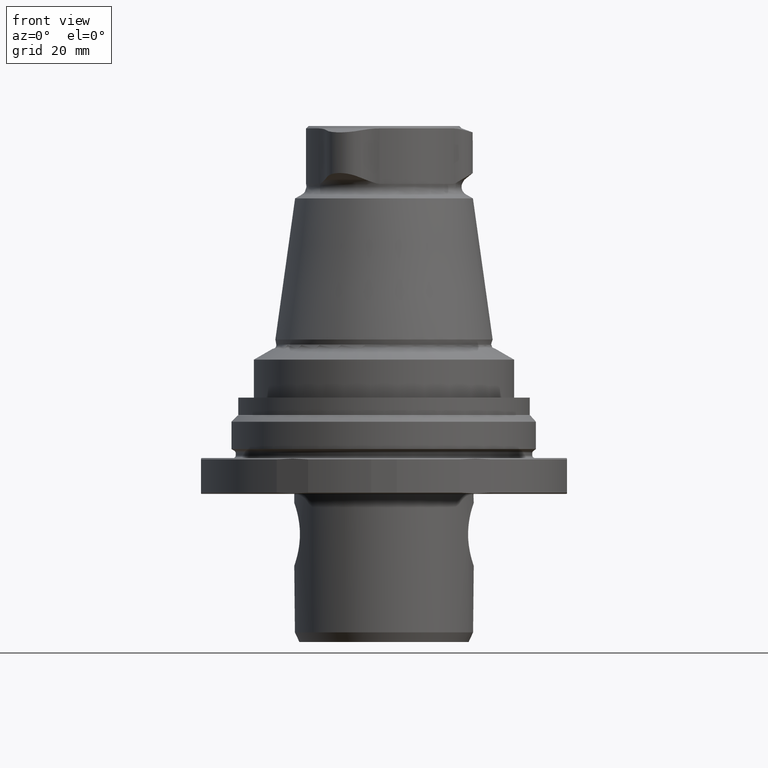
[diagram: clean part render]
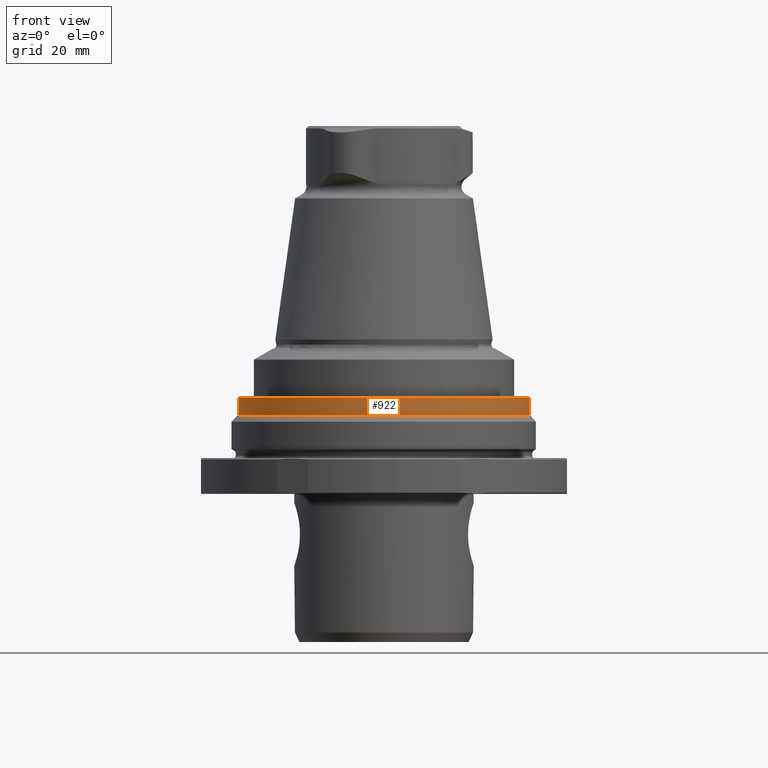
[diagram: same view with one face highlighted and labeled with its STEP entity id]
A machine part, front view. The second image highlights one B-rep face of the part: STEP entity #922.
In plain terms, the highlighted cylindrical surface (bore or boss wall) has radius 32.48 mm, axis along (0, -0, 1).
Its self-contained STEP definition (entity closure, byte-faithful):
#141=CIRCLE('',#1027,32.48);
#143=CIRCLE('',#1031,32.48);
#296=ORIENTED_EDGE('',*,*,#478,.T.);
#297=ORIENTED_EDGE('',*,*,#480,.T.);
#478=EDGE_CURVE('',#586,#586,#141,.T.);
#480=EDGE_CURVE('',#588,#588,#143,.T.);
#586=VERTEX_POINT('',#1632);
#588=VERTEX_POINT('',#1638);
#726=EDGE_LOOP('',(#296));
#727=EDGE_LOOP('',(#297));
#821=FACE_BOUND('',#726,.T.);
#822=FACE_BOUND('',#727,.T.);
#874=CYLINDRICAL_SURFACE('',#1030,32.48);
#922=ADVANCED_FACE('',(#821,#822),#874,.T.);
#1027=AXIS2_PLACEMENT_3D('',#1631,#1222,#1223);
#1030=AXIS2_PLACEMENT_3D('',#1636,#1228,#1229);
#1031=AXIS2_PLACEMENT_3D('',#1637,#1230,#1231);
#1222=DIRECTION('',(-5.2112629750951E-18,6.90472121537616E-17,-1.));
#1223=DIRECTION('',(-1.,6.12303176911188E-17,1.08491142720197E-17));
#1228=DIRECTION('',(5.21126297509512E-18,-7.81689446264269E-18,1.));
#1229=DIRECTION('',(1.,-6.12303176911188E-17,-1.08491142720197E-17));
#1230=DIRECTION('',(5.21126297509514E-18,5.34134232284762E-17,1.));
#1231=DIRECTION('',(1.,-6.12303176911188E-17,-1.08491142720197E-17));
#1631=CARTESIAN_POINT('',(7.41400110335705E-15,-9.5236033096486E-18,12.46));
#1632=CARTESIAN_POINT('',(-32.48,1.97923711529789E-15,12.46));
#1636=CARTESIAN_POINT('',(7.40394336581512E-15,5.56300300325179E-18,10.53));
#1637=CARTESIAN_POINT('',(7.39388562827318E-15,2.0649609316152E-17,8.59999999999999));
#1638=CARTESIAN_POINT('',(32.48,-1.96811110929139E-15,8.59999999999999));